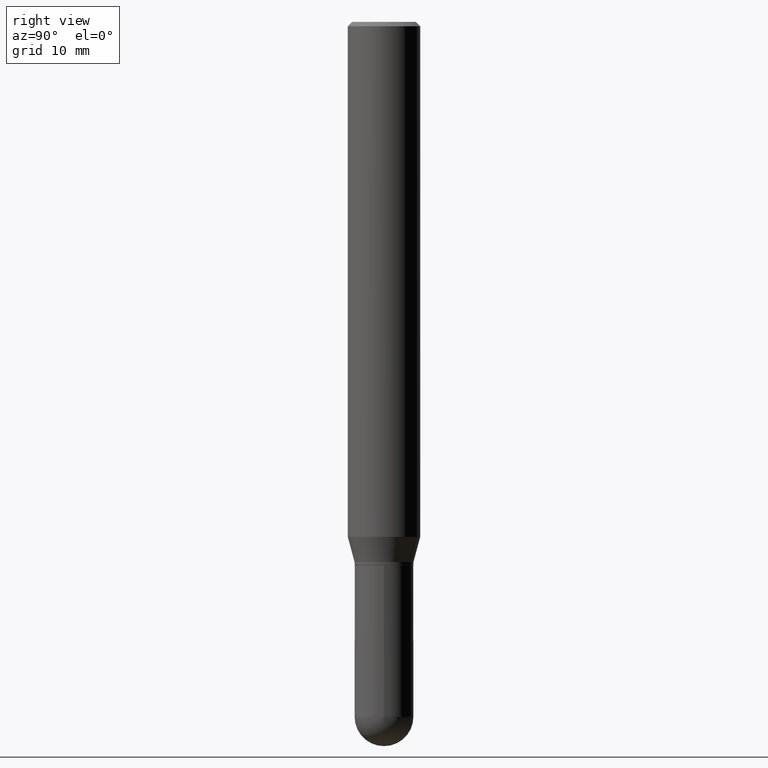
[diagram: clean part render]
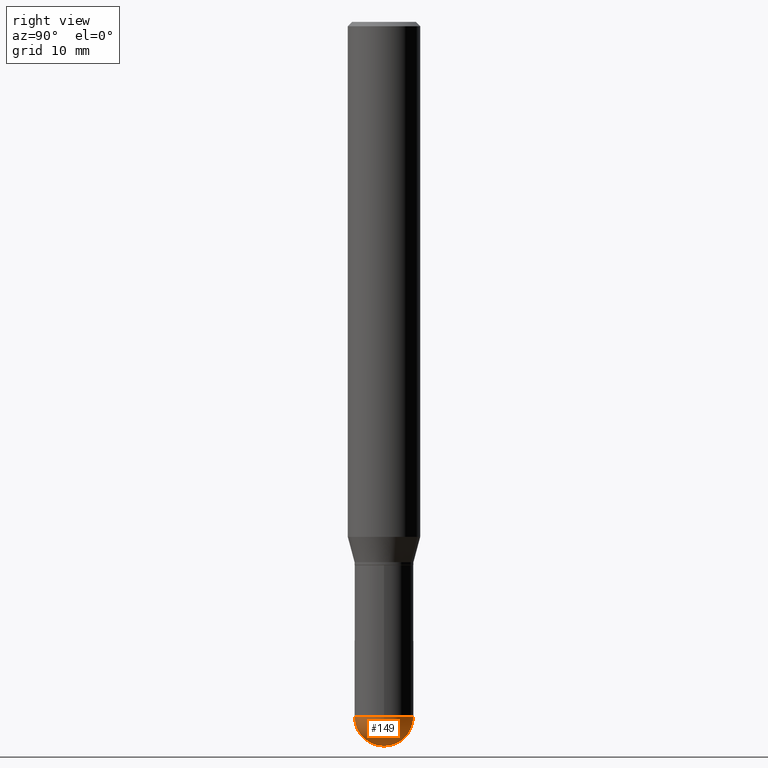
[diagram: same view with one face highlighted and labeled with its STEP entity id]
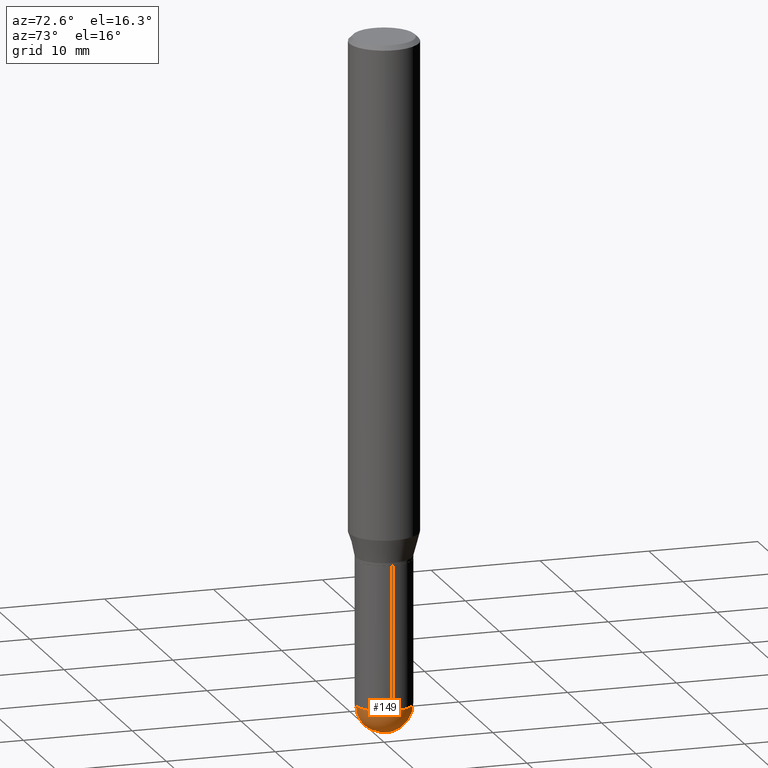
[diagram: same view with one face highlighted and labeled with its STEP entity id]
A machine part, right view. The second image highlights one B-rep face of the part: STEP entity #149.
A second angle (auxiliary view) of the same face is appended — the face is thin or edge-on in the first view.
In plain terms, the highlighted spherical surface has radius 2.5794 mm.
Its self-contained STEP definition (entity closure, byte-faithful):
#19 = ORIENTED_EDGE ( 'NONE', *, *, #456, .T. ) ;
#41 = AXIS2_PLACEMENT_3D ( 'NONE', #254, #293, #53 ) ;
#44 = EDGE_CURVE ( 'NONE', #330, #279, #497, .T. ) ;
#53 = DIRECTION ( 'NONE',  ( 1.000000000000000000, -6.982962677686258033E-15, 0.000000000000000000 ) ) ;
#57 = EDGE_CURVE ( 'NONE', #399, #166, #139, .T. ) ;
#64 = DIRECTION ( 'NONE',  ( 1.000000000000000000, -6.982962677686258033E-15, 0.000000000000000000 ) ) ;
#67 = DIRECTION ( 'NONE',  ( 6.982962677686266711E-15, 1.000000000000000000, -2.690150658458162309E-15 ) ) ;
#71 = DIRECTION ( 'NONE',  ( -1.000000000000000000, 6.982962677686266711E-15, -4.883557194083112901E-29 ) ) ;
#82 = ORIENTED_EDGE ( 'NONE', *, *, #57, .F. ) ;
#103 = CARTESIAN_POINT ( 'NONE',  ( 0.1015500000000000985, -8.169455323658661228E-15, -2.398450000000000415 ) ) ;
#139 = CIRCLE ( 'NONE', #232, 0.1015500000000000985 ) ;
#149 = ADVANCED_FACE ( 'NONE', ( #460 ), #392, .T. ) ;
#166 = VERTEX_POINT ( 'NONE', #189 ) ;
#168 = EDGE_LOOP ( 'NONE', ( #446, #19, #82, #443 ) ) ;
#173 = DIRECTION ( 'NONE',  ( 6.982962677686266711E-15, 1.000000000000000000, 0.000000000000000000 ) ) ;
#189 = CARTESIAN_POINT ( 'NONE',  ( 7.091198599190993550E-16, 0.1015499999999916747, -2.398450000000000415 ) ) ;
#190 = CARTESIAN_POINT ( 'NONE',  ( 5.899408758987094508E-29, -8.325347365436315775E-15, -2.398450000000000415 ) ) ;
#192 = AXIS2_PLACEMENT_3D ( 'NONE', #449, #369, #173 ) ;
#202 = CARTESIAN_POINT ( 'NONE',  ( 6.152088223088502938E-29, -8.673689151273167162E-15, -2.500000000000000000 ) ) ;
#220 = CARTESIAN_POINT ( 'NONE',  ( 5.899408758987094508E-29, -8.325347365436315775E-15, -2.398450000000000415 ) ) ;
#232 = AXIS2_PLACEMENT_3D ( 'NONE', #302, #263, #64 ) ;
#249 = AXIS2_PLACEMENT_3D ( 'NONE', #220, #379, #417 ) ;
#254 = CARTESIAN_POINT ( 'NONE',  ( 5.865334658194741045E-29, -8.374143417148343763E-15, -2.398450000000000415 ) ) ;
#263 = DIRECTION ( 'NONE',  ( -2.445468806185136597E-29, 3.491481338843145583E-15, 1.000000000000000000 ) ) ;
#279 = VERTEX_POINT ( 'NONE', #477 ) ;
#293 = DIRECTION ( 'NONE',  ( -2.445468806185136597E-29, 3.491481338843145583E-15, 1.000000000000000000 ) ) ;
#302 = CARTESIAN_POINT ( 'NONE',  ( 5.865334658194741045E-29, -8.374143417148343763E-15, -2.398450000000000415 ) ) ;
#328 = AXIS2_PLACEMENT_3D ( 'NONE', #190, #71, #67 ) ;
#330 = VERTEX_POINT ( 'NONE', #202 ) ;
#351 = CIRCLE ( 'NONE', #41, 0.1015500000000000985 ) ;
#369 = DIRECTION ( 'NONE',  ( 1.000000000000000000, -6.982962677686265922E-15, 4.883557194083112340E-29 ) ) ;
#379 = DIRECTION ( 'NONE',  ( -1.000000000000000000, 7.105427357601001070E-15, -4.926315508542082329E-29 ) ) ;
#392 = SPHERICAL_SURFACE ( 'NONE', #328, 0.1015499999999999736 ) ;
#399 = VERTEX_POINT ( 'NONE', #103 ) ;
#417 = DIRECTION ( 'NONE',  ( -7.105427357601001070E-15, -1.000000000000000000, 0.000000000000000000 ) ) ;
#438 = EDGE_CURVE ( 'NONE', #279, #399, #351, .T. ) ;
#443 = ORIENTED_EDGE ( 'NONE', *, *, #438, .F. ) ;
#446 = ORIENTED_EDGE ( 'NONE', *, *, #44, .F. ) ;
#449 = CARTESIAN_POINT ( 'NONE',  ( 5.899408758987094508E-29, -8.325347365436315775E-15, -2.398450000000000415 ) ) ;
#456 = EDGE_CURVE ( 'NONE', #330, #166, #489, .T. ) ;
#460 = FACE_OUTER_BOUND ( 'NONE', #168, .T. ) ;
#477 = CARTESIAN_POINT ( 'NONE',  ( -7.215561481643230770E-16, -0.1015500000000083697, -2.398449999999999971 ) ) ;
#489 = CIRCLE ( 'NONE', #192, 0.1015499999999999736 ) ;
#497 = CIRCLE ( 'NONE', #249, 0.1015499999999999736 ) ;